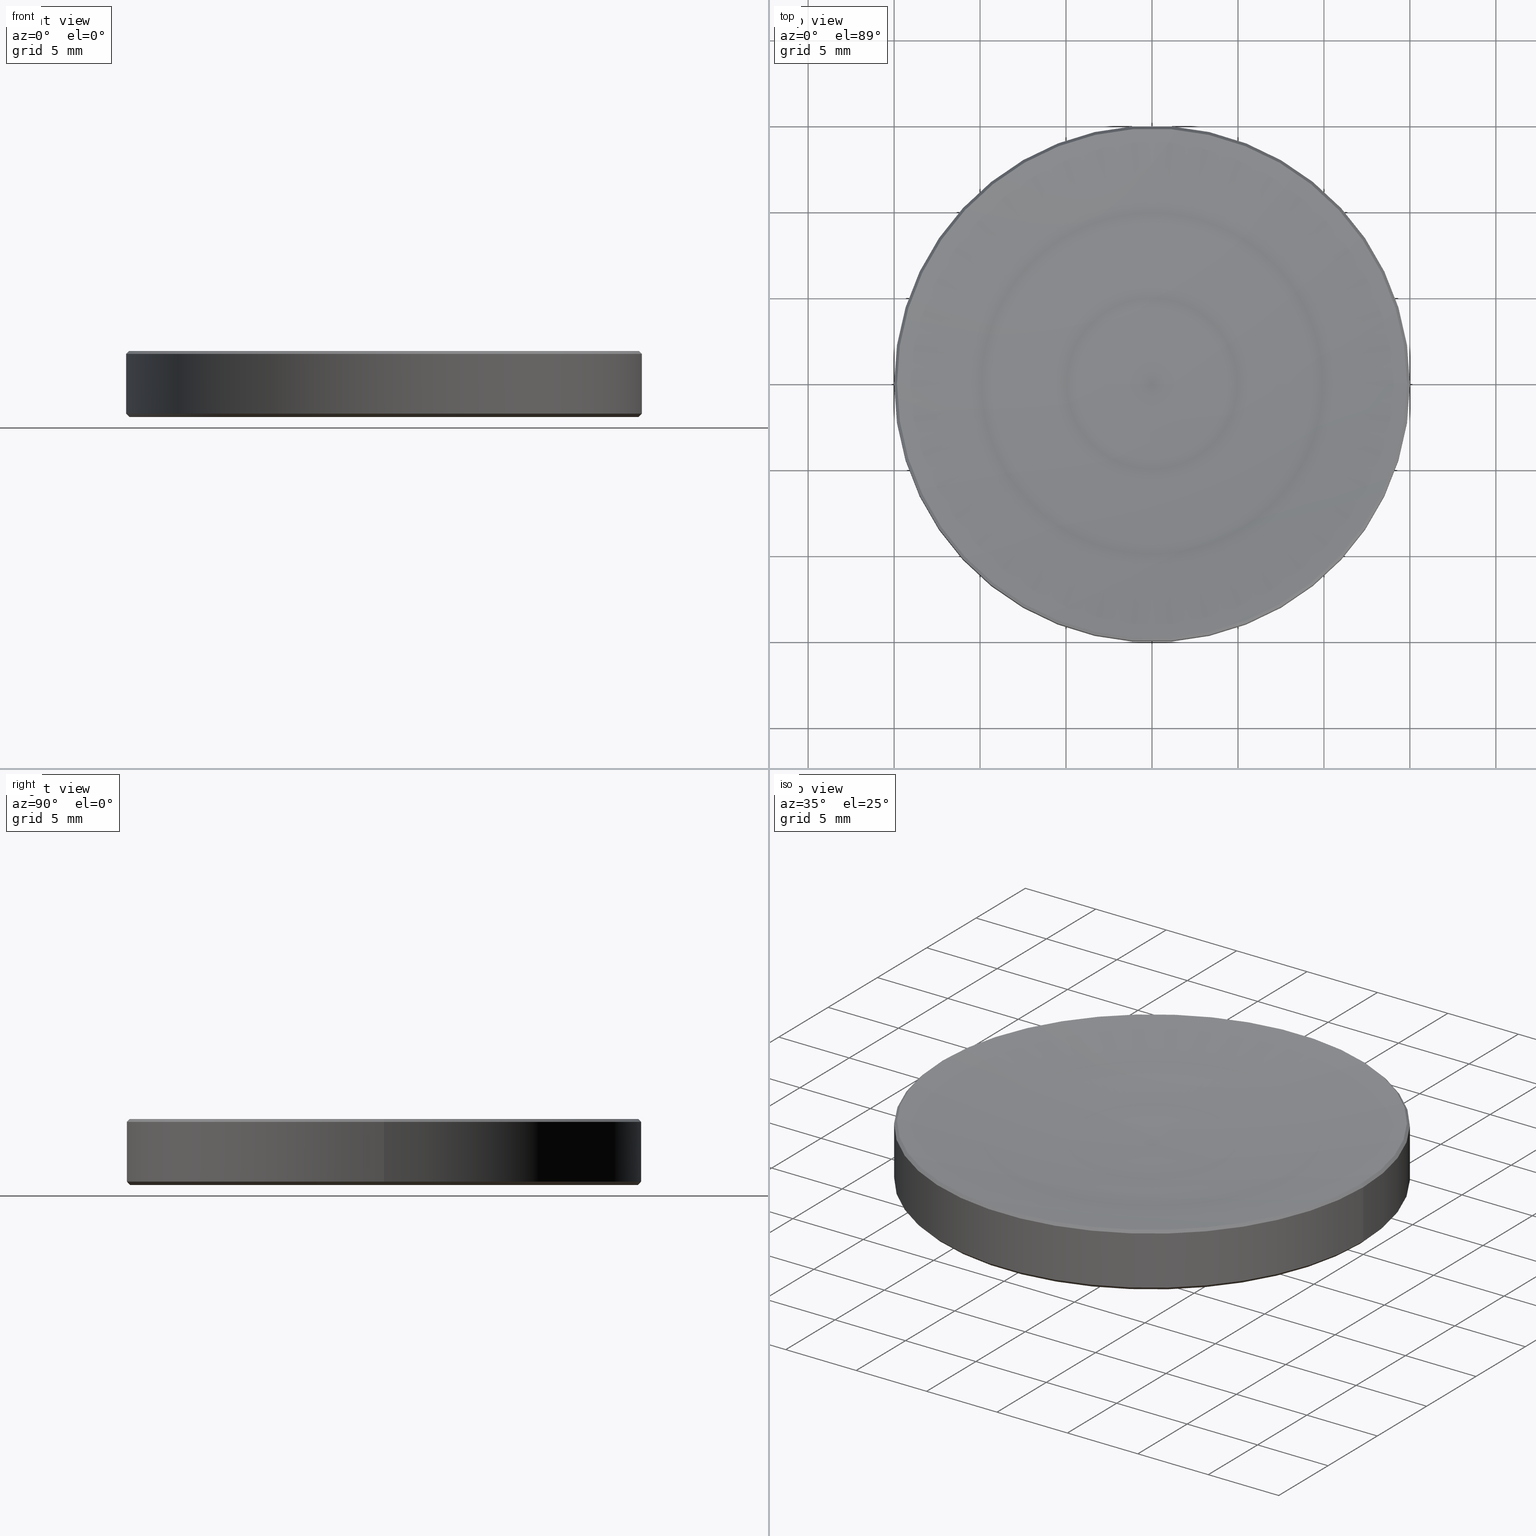
[diagram: canonical four-view strip — front | top / right | iso, engineering-drawing reading convention]
A machine part, canonical four-view strip (front | top / right | iso — engineering-drawing reading convention). The complete STEP part file that produces these views, byte-faithful:
ISO-10303-21;
HEADER;
FILE_DESCRIPTION (( 'STEP AP214' ),
    '1' );
FILE_NAME ('GL13-030-160.STEP',
    '2022-10-25T13:47:51',
    ( '' ),
    ( '' ),
    'SwSTEP 2.0',
    'SolidWorks 2022',
    '' );
FILE_SCHEMA (( 'AUTOMOTIVE_DESIGN' ));
ENDSEC;

DATA;
#1 = EDGE_CURVE ( 'NONE', #86, #47, #165, .T. ) ;
#2 = DIRECTION ( 'NONE',  ( 1.000000000000000000, 0.000000000000000000, 0.000000000000000000 ) ) ;
#3 = APPLICATION_PROTOCOL_DEFINITION ( 'draft international standard', 'automotive_design', 1998, #153 ) ;
#4 = DIRECTION ( 'NONE',  ( -0.000000000000000000, -0.000000000000000000, 1.000000000000000000 ) ) ;
#5 = CARTESIAN_POINT ( 'NONE',  ( 0.000000000000000000, 0.000000000000000000, 3.839013704481447853 ) ) ;
#6 = VECTOR ( 'NONE', #212, 999.9999999999998863 ) ;
#7 = CARTESIAN_POINT ( 'NONE',  ( 0.000000000000000000, 0.000000000000000000, 85.11999833166460405 ) ) ;
#8 = DIRECTION ( 'NONE',  ( 1.000000000000000000, 0.000000000000000000, 0.000000000000000000 ) ) ;
#9 = CARTESIAN_POINT ( 'NONE',  ( 15.00000000000000000, 0.000000000000000000, 0.2000000000000031197 ) ) ;
#10 =( LENGTH_UNIT ( ) NAMED_UNIT ( * ) SI_UNIT ( .MILLI., .METRE. ) );
#11 = CONICAL_SURFACE ( 'NONE', #227, 15.00000000000000000, 0.7853981633974528309 ) ;
#12 = CIRCLE ( 'NONE', #67, 15.00000000000000000 ) ;
#13 = DIRECTION ( 'NONE',  ( 0.000000000000000000, 0.000000000000000000, -1.000000000000000000 ) ) ;
#14 = CARTESIAN_POINT ( 'NONE',  ( 0.000000000000000000, 0.000000000000000000, 2.500000000000000000 ) ) ;
#15 = VERTEX_POINT ( 'NONE', #207 ) ;
#16 = DIRECTION ( 'NONE',  ( -0.000000000000000000, -0.000000000000000000, 1.000000000000000000 ) ) ;
#17 =( NAMED_UNIT ( * ) SI_UNIT ( $, .STERADIAN. ) SOLID_ANGLE_UNIT ( ) );
#18 = CIRCLE ( 'NONE', #94, 15.00000000000000000 ) ;
#19 = CIRCLE ( 'NONE', #31, 14.79999999999999538 ) ;
#20 = EDGE_LOOP ( 'NONE', ( #49, #140, #237 ) ) ;
#21 = VERTEX_POINT ( 'NONE', #266 ) ;
#22 = VERTEX_POINT ( 'NONE', #126 ) ;
#23 = EDGE_CURVE ( 'NONE', #90, #47, #71, .T. ) ;
#24 = DIRECTION ( 'NONE',  ( -0.000000000000000000, -0.000000000000000000, 1.000000000000000000 ) ) ;
#25 = PRESENTATION_STYLE_ASSIGNMENT (( #112 ) ) ;
#26 = ORIENTED_EDGE ( 'NONE', *, *, #102, .T. ) ;
#27 = SURFACE_STYLE_FILL_AREA ( #206 ) ;
#28 =( NAMED_UNIT ( * ) SI_UNIT ( $, .STERADIAN. ) SOLID_ANGLE_UNIT ( ) );
#29 = ADVANCED_FACE ( 'NONE', ( #147 ), #11, .T. ) ;
#30 = DIRECTION ( 'NONE',  ( 1.000000000000000000, 0.000000000000000000, 0.000000000000000000 ) ) ;
#31 = AXIS2_PLACEMENT_3D ( 'NONE', #201, #260, #38 ) ;
#32 = DIRECTION ( 'NONE',  ( 1.000000000000000000, 0.000000000000000000, 0.000000000000000000 ) ) ;
#33 = DIRECTION ( 'NONE',  ( -0.000000000000000000, -0.000000000000000000, 1.000000000000000000 ) ) ;
#34 = ADVANCED_FACE ( 'NONE', ( #65 ), #217, .T. ) ;
#35 = DIRECTION ( 'NONE',  ( -0.000000000000000000, -0.000000000000000000, 1.000000000000000000 ) ) ;
#36 = AXIS2_PLACEMENT_3D ( 'NONE', #111, #166, #2 ) ;
#37 = AXIS2_PLACEMENT_3D ( 'NONE', #113, #93, #249 ) ;
#38 = DIRECTION ( 'NONE',  ( 1.000000000000000000, 0.000000000000000000, 0.000000000000000000 ) ) ;
#39 = CARTESIAN_POINT ( 'NONE',  ( 14.79999999999999538, 0.000000000000000000, 9.184850993605147944E-16 ) ) ;
#40 = EDGE_CURVE ( 'NONE', #244, #187, #18, .T. ) ;
#41 =( NAMED_UNIT ( * ) PLANE_ANGLE_UNIT ( ) SI_UNIT ( $, .RADIAN. ) );
#42 = AXIS2_PLACEMENT_3D ( 'NONE', #229, #203, #48 ) ;
#43 = ORIENTED_EDGE ( 'NONE', *, *, #184, .T. ) ;
#44 = CONICAL_SURFACE ( 'NONE', #190, 14.83098629551858494, 0.7853981633974533860 ) ;
#45 = ORIENTED_EDGE ( 'NONE', *, *, #23, .T. ) ;
#46 = AXIS2_PLACEMENT_3D ( 'NONE', #238, #199, #120 ) ;
#47 = VERTEX_POINT ( 'NONE', #226 ) ;
#48 = DIRECTION ( 'NONE',  ( -1.000000000000000000, 0.000000000000000000, 0.000000000000000000 ) ) ;
#49 = ORIENTED_EDGE ( 'NONE', *, *, #23, .F. ) ;
#50 = CIRCLE ( 'NONE', #195, 14.79999999999999538 ) ;
#51 = CIRCLE ( 'NONE', #178, 15.00000000000000000 ) ;
#52 = DIRECTION ( 'NONE',  ( -1.000000000000000000, 0.000000000000000000, 0.000000000000000000 ) ) ;
#53 = EDGE_CURVE ( 'NONE', #86, #21, #110, .T. ) ;
#54 = TOROIDAL_SURFACE ( 'NONE', #119, 0.01660348570795434214, 82.62000000000000455 ) ;
#55 = DIRECTION ( 'NONE',  ( -0.000000000000000000, -0.000000000000000000, 1.000000000000000000 ) ) ;
#56 = ADVANCED_FACE ( 'NONE', ( #248 ), #152, .T. ) ;
#57 = CARTESIAN_POINT ( 'NONE',  ( 0.000000000000000000, 0.000000000000000000, 0.000000000000000000 ) ) ;
#58 = CIRCLE ( 'NONE', #37, 82.62000000000000455 ) ;
#59 = ORIENTED_EDGE ( 'NONE', *, *, #232, .T. ) ;
#60 = ADVANCED_FACE ( 'NONE', ( #250 ), #106, .F. ) ;
#61 = FACE_OUTER_BOUND ( 'NONE', #222, .T. ) ;
#62 = LINE ( 'NONE', #183, #218 ) ;
#63 = VECTOR ( 'NONE', #35, 1000.000000000000000 ) ;
#64 = VECTOR ( 'NONE', #160, 1000.000000000000114 ) ;
#65 = FACE_OUTER_BOUND ( 'NONE', #127, .T. ) ;
#66 = ORIENTED_EDGE ( 'NONE', *, *, #107, .T. ) ;
#67 = AXIS2_PLACEMENT_3D ( 'NONE', #136, #196, #104 ) ;
#68 = DIRECTION ( 'NONE',  ( 0.000000000000000000, 0.000000000000000000, -1.000000000000000000 ) ) ;
#69 = EDGE_LOOP ( 'NONE', ( #225, #45, #246 ) ) ;
#70 = ORIENTED_EDGE ( 'NONE', *, *, #139, .F. ) ;
#71 = CIRCLE ( 'NONE', #156, 82.62000000000000455 ) ;
#72 = APPLICATION_CONTEXT ( 'automotive_design' ) ;
#73 = CARTESIAN_POINT ( 'NONE',  ( 0.000000000000000000, 0.000000000000000000, 3.670000000000020357 ) ) ;
#74 = DIRECTION ( 'NONE',  ( -0.000000000000000000, -0.000000000000000000, 1.000000000000000000 ) ) ;
#75 = CARTESIAN_POINT ( 'NONE',  ( 0.000000000000000000, 0.000000000000000000, 9.184850993605147944E-16 ) ) ;
#76 = SHAPE_DEFINITION_REPRESENTATION ( #255, #124 ) ;
#77 = SURFACE_STYLE_USAGE ( .BOTH. , #231 ) ;
#78 = APPLICATION_PROTOCOL_DEFINITION ( 'draft international standard', 'automotive_design', 1998, #72 ) ;
#79 = CARTESIAN_POINT ( 'NONE',  ( 0.000000000000000000, 0.000000000000000000, 3.839013704481433642 ) ) ;
#80 = EDGE_CURVE ( 'NONE', #47, #86, #243, .T. ) ;
#81 = LINE ( 'NONE', #105, #64 ) ;
#82 = ORIENTED_EDGE ( 'NONE', *, *, #161, .T. ) ;
#83 =( GEOMETRIC_REPRESENTATION_CONTEXT ( 3 ) GLOBAL_UNCERTAINTY_ASSIGNED_CONTEXT ( ( #197 ) ) GLOBAL_UNIT_ASSIGNED_CONTEXT ( ( #121, #41, #17 ) ) REPRESENTATION_CONTEXT ( 'NONE', 'WORKASPACE' ) );
#84 = ORIENTED_EDGE ( 'NONE', *, *, #102, .F. ) ;
#85 = ORIENTED_EDGE ( 'NONE', *, *, #184, .F. ) ;
#86 = VERTEX_POINT ( 'NONE', #234 ) ;
#87 =( NAMED_UNIT ( * ) PLANE_ANGLE_UNIT ( ) SI_UNIT ( $, .RADIAN. ) );
#88 = EDGE_CURVE ( 'NONE', #47, #15, #157, .T. ) ;
#89 = MECHANICAL_DESIGN_GEOMETRIC_PRESENTATION_REPRESENTATION (  '', ( #252 ), #141 ) ;
#90 = VERTEX_POINT ( 'NONE', #117 ) ;
#91 = DIRECTION ( 'NONE',  ( -0.7071067811865511255, 0.000000000000000000, -0.7071067811865440200 ) ) ;
#92 = CARTESIAN_POINT ( 'NONE',  ( 0.000000000000000000, 0.000000000000000000, 0.2000000000000031197 ) ) ;
#93 = DIRECTION ( 'NONE',  ( 1.224646799147353207E-16, 1.000000000000000000, 0.000000000000000000 ) ) ;
#94 = AXIS2_PLACEMENT_3D ( 'NONE', #92, #24, #143 ) ;
#95 = AXIS2_PLACEMENT_3D ( 'NONE', #57, #158, #8 ) ;
#96 = SURFACE_STYLE_FILL_AREA ( #150 ) ;
#97 = MANIFOLD_SOLID_BREP ( '����2', #169 ) ;
#98 = FACE_OUTER_BOUND ( 'NONE', #208, .T. ) ;
#99 = DIRECTION ( 'NONE',  ( 0.7071067811865506814, 0.000000000000000000, 0.7071067811865443531 ) ) ;
#100 = FACE_OUTER_BOUND ( 'NONE', #69, .T. ) ;
#101 = DIRECTION ( 'NONE',  ( 1.000000000000000000, 0.000000000000000000, 0.000000000000000000 ) ) ;
#102 = EDGE_CURVE ( 'NONE', #187, #21, #155, .T. ) ;
#103 = PRESENTATION_LAYER_ASSIGNMENT (  '', '', ( #131 ) ) ;
#104 = DIRECTION ( 'NONE',  ( 1.000000000000000000, 0.000000000000000000, 0.000000000000000000 ) ) ;
#105 = CARTESIAN_POINT ( 'NONE',  ( -15.00000000000000000, 1.836970198721029589E-15, 0.2000000000000031197 ) ) ;
#106 = TOROIDAL_SURFACE ( 'NONE', #125, 0.01660348570795434214, 82.62000000000000455 ) ;
#107 = EDGE_CURVE ( 'NONE', #210, #244, #177, .T. ) ;
#108 = ORIENTED_EDGE ( 'NONE', *, *, #221, .T. ) ;
#109 = ORIENTED_EDGE ( 'NONE', *, *, #40, .T. ) ;
#110 = LINE ( 'NONE', #173, #209 ) ;
#111 = CARTESIAN_POINT ( 'NONE',  ( 0.000000000000000000, 0.000000000000000000, 3.839013704481447853 ) ) ;
#112 = SURFACE_STYLE_USAGE ( .BOTH. , #247 ) ;
#113 = CARTESIAN_POINT ( 'NONE',  ( -0.01660348570795434214, 2.033340562693511406E-18, 85.11999833166460405 ) ) ;
#114 = DIRECTION ( 'NONE',  ( 0.000000000000000000, 0.000000000000000000, -1.000000000000000000 ) ) ;
#115 = DIRECTION ( 'NONE',  ( 0.000000000000000000, -0.000000000000000000, 1.000000000000000000 ) ) ;
#116 = ADVANCED_FACE ( 'NONE', ( #98 ), #175, .F. ) ;
#117 = CARTESIAN_POINT ( 'NONE',  ( 0.000000000000000000, 0.000000000000000000, 2.500000000000000000 ) ) ;
#118 = DIRECTION ( 'NONE',  ( 1.000000000000000000, 0.000000000000000000, 0.000000000000000000 ) ) ;
#119 = AXIS2_PLACEMENT_3D ( 'NONE', #254, #55, #135 ) ;
#120 = DIRECTION ( 'NONE',  ( -1.000000000000000000, 0.000000000000000000, 0.000000000000000000 ) ) ;
#121 =( LENGTH_UNIT ( ) NAMED_UNIT ( * ) SI_UNIT ( .MILLI., .METRE. ) );
#122 = PRODUCT_DEFINITION_CONTEXT ( 'detailed design', #72, 'design' ) ;
#123 = DIRECTION ( 'NONE',  ( 0.000000000000000000, -1.000000000000000000, 0.000000000000000000 ) ) ;
#124 = ADVANCED_BREP_SHAPE_REPRESENTATION ( 'GL13-030-160', ( #97, #95 ), #83 ) ;
#125 = AXIS2_PLACEMENT_3D ( 'NONE', #7, #74, #32 ) ;
#126 = CARTESIAN_POINT ( 'NONE',  ( -14.79999999999999538, 1.824723730729555837E-15, 9.184850993605147944E-16 ) ) ;
#127 = EDGE_LOOP ( 'NONE', ( #185, #242, #228, #205 ) ) ;
#128 = ORIENTED_EDGE ( 'NONE', *, *, #107, .F. ) ;
#129 = VECTOR ( 'NONE', #99, 1000.000000000000114 ) ;
#130 = ORIENTED_EDGE ( 'NONE', *, *, #53, .F. ) ;
#131 = STYLED_ITEM ( 'NONE', ( #25 ), #124 ) ;
#132 = CARTESIAN_POINT ( 'NONE',  ( 0.000000000000000000, 0.000000000000000000, 2.500000000000000000 ) ) ;
#133 =( NAMED_UNIT ( * ) PLANE_ANGLE_UNIT ( ) SI_UNIT ( $, .RADIAN. ) );
#134 = PRESENTATION_LAYER_ASSIGNMENT (  '', '', ( #252 ) ) ;
#135 = DIRECTION ( 'NONE',  ( 1.000000000000000000, 0.000000000000000000, 0.000000000000000000 ) ) ;
#136 = CARTESIAN_POINT ( 'NONE',  ( 0.000000000000000000, 0.000000000000000000, 0.2000000000000031197 ) ) ;
#137 = MECHANICAL_DESIGN_GEOMETRIC_PRESENTATION_REPRESENTATION (  '', ( #131 ), #204 ) ;
#138 = DIRECTION ( 'NONE',  ( -0.000000000000000000, -0.000000000000000000, 1.000000000000000000 ) ) ;
#139 = EDGE_CURVE ( 'NONE', #210, #22, #50, .T. ) ;
#140 = ORIENTED_EDGE ( 'NONE', *, *, #151, .T. ) ;
#141 =( GEOMETRIC_REPRESENTATION_CONTEXT ( 3 ) GLOBAL_UNCERTAINTY_ASSIGNED_CONTEXT ( ( #202 ) ) GLOBAL_UNIT_ASSIGNED_CONTEXT ( ( #10, #133, #28 ) ) REPRESENTATION_CONTEXT ( 'NONE', 'WORKASPACE' ) );
#142 = ADVANCED_FACE ( 'NONE', ( #100 ), #54, .F. ) ;
#143 = DIRECTION ( 'NONE',  ( 1.000000000000000000, 0.000000000000000000, 0.000000000000000000 ) ) ;
#144 = AXIS2_PLACEMENT_3D ( 'NONE', #5, #33, #30 ) ;
#145 = ORIENTED_EDGE ( 'NONE', *, *, #221, .F. ) ;
#146 = ADVANCED_FACE ( 'NONE', ( #216 ), #44, .T. ) ;
#147 = FACE_OUTER_BOUND ( 'NONE', #261, .T. ) ;
#148 = EDGE_LOOP ( 'NONE', ( #84, #108, #59, #82 ) ) ;
#149 = ORIENTED_EDGE ( 'NONE', *, *, #200, .T. ) ;
#150 = FILL_AREA_STYLE ('',( #179 ) ) ;
#151 = EDGE_CURVE ( 'NONE', #90, #86, #58, .T. ) ;
#152 = CYLINDRICAL_SURFACE ( 'NONE', #239, 15.00000000000000000 ) ;
#153 = APPLICATION_CONTEXT ( 'automotive_design' ) ;
#154 = PRODUCT_CONTEXT ( 'NONE', #153, 'mechanical' ) ;
#155 = LINE ( 'NONE', #215, #63 ) ;
#156 = AXIS2_PLACEMENT_3D ( 'NONE', #171, #123, #68 ) ;
#157 = LINE ( 'NONE', #253, #6 ) ;
#158 = DIRECTION ( 'NONE',  ( 0.000000000000000000, 0.000000000000000000, 1.000000000000000000 ) ) ;
#159 = CYLINDRICAL_SURFACE ( 'NONE', #224, 15.00000000000000000 ) ;
#160 = DIRECTION ( 'NONE',  ( -0.7071067811865506814, 8.659560562354969836E-17, 0.7071067811865443531 ) ) ;
#161 = EDGE_CURVE ( 'NONE', #15, #21, #51, .T. ) ;
#162 = ORIENTED_EDGE ( 'NONE', *, *, #219, .F. ) ;
#163 = CARTESIAN_POINT ( 'NONE',  ( -15.00000000000000000, 1.836970198721029589E-15, 0.2000000000000031197 ) ) ;
#164 = ORIENTED_EDGE ( 'NONE', *, *, #200, .F. ) ;
#165 = CIRCLE ( 'NONE', #36, 14.83098629551858849 ) ;
#166 = DIRECTION ( 'NONE',  ( -0.000000000000000000, -0.000000000000000000, 1.000000000000000000 ) ) ;
#167 = ORIENTED_EDGE ( 'NONE', *, *, #219, .T. ) ;
#168 =( NAMED_UNIT ( * ) SI_UNIT ( $, .STERADIAN. ) SOLID_ANGLE_UNIT ( ) );
#169 = CLOSED_SHELL ( 'NONE', ( #146, #29, #56, #60, #142, #241, #116, #245, #34 ) ) ;
#170 = PRODUCT_DEFINITION_FORMATION_WITH_SPECIFIED_SOURCE ( '�κ�', '', #198, .NOT_KNOWN. ) ;
#171 = CARTESIAN_POINT ( 'NONE',  ( 0.01660348570795434214, 0.000000000000000000, 85.11999833166460405 ) ) ;
#172 = ORIENTED_EDGE ( 'NONE', *, *, #80, .F. ) ;
#173 = CARTESIAN_POINT ( 'NONE',  ( -14.83098629551858494, 0.000000000000000000, 3.839013704481433642 ) ) ;
#174 = DIRECTION ( 'NONE',  ( -0.000000000000000000, -0.000000000000000000, 1.000000000000000000 ) ) ;
#175 = PLANE ( 'NONE',  #262 ) ;
#176 = PRODUCT_DEFINITION ( 'δ֪', '', #170, #122 ) ;
#177 = LINE ( 'NONE', #9, #129 ) ;
#178 = AXIS2_PLACEMENT_3D ( 'NONE', #73, #114, #192 ) ;
#179 = FILL_AREA_STYLE_COLOUR ( '', #223 ) ;
#180 = CARTESIAN_POINT ( 'NONE',  ( 15.00000000000000000, 0.000000000000000000, 0.2000000000000031197 ) ) ;
#181 = ORIENTED_EDGE ( 'NONE', *, *, #40, .F. ) ;
#182 = UNCERTAINTY_MEASURE_WITH_UNIT (LENGTH_MEASURE( 1.000000000000000082E-05 ), #265, 'distance_accuracy_value', 'NONE');
#183 = CARTESIAN_POINT ( 'NONE',  ( 15.00000000000000000, 0.000000000000000000, 2.500000000000000000 ) ) ;
#184 = EDGE_CURVE ( 'NONE', #22, #187, #81, .T. ) ;
#185 = ORIENTED_EDGE ( 'NONE', *, *, #88, .F. ) ;
#186 = ORIENTED_EDGE ( 'NONE', *, *, #88, .T. ) ;
#187 = VERTEX_POINT ( 'NONE', #163 ) ;
#188 = PRODUCT_RELATED_PRODUCT_CATEGORY ( 'part', '', ( #198 ) ) ;
#189 = CARTESIAN_POINT ( 'NONE',  ( 0.000000000000000000, 0.000000000000000000, 0.2000000000000031197 ) ) ;
#190 = AXIS2_PLACEMENT_3D ( 'NONE', #79, #213, #52 ) ;
#191 = CONICAL_SURFACE ( 'NONE', #258, 15.00000000000000000, 0.7853981633974528309 ) ;
#192 = DIRECTION ( 'NONE',  ( -1.000000000000000000, 0.000000000000000000, 0.000000000000000000 ) ) ;
#193 = PRESENTATION_STYLE_ASSIGNMENT (( #77 ) ) ;
#194 = DIRECTION ( 'NONE',  ( 1.000000000000000000, 0.000000000000000000, 0.000000000000000000 ) ) ;
#195 = AXIS2_PLACEMENT_3D ( 'NONE', #75, #13, #233 ) ;
#196 = DIRECTION ( 'NONE',  ( -0.000000000000000000, -0.000000000000000000, 1.000000000000000000 ) ) ;
#197 = UNCERTAINTY_MEASURE_WITH_UNIT (LENGTH_MEASURE( 1.000000000000000082E-05 ), #121, 'distance_accuracy_value', 'NONE');
#198 = PRODUCT ( 'GL13-030-160', 'GL13-030-160', '', ( #154 ) ) ;
#199 = DIRECTION ( 'NONE',  ( 0.000000000000000000, 0.000000000000000000, -1.000000000000000000 ) ) ;
#200 = EDGE_CURVE ( 'NONE', #21, #15, #235, .T. ) ;
#201 = CARTESIAN_POINT ( 'NONE',  ( 0.000000000000000000, 0.000000000000000000, 9.184850993605147944E-16 ) ) ;
#202 = UNCERTAINTY_MEASURE_WITH_UNIT (LENGTH_MEASURE( 1.000000000000000082E-05 ), #10, 'distance_accuracy_value', 'NONE');
#203 = DIRECTION ( 'NONE',  ( 0.000000000000000000, 0.000000000000000000, -1.000000000000000000 ) ) ;
#204 =( GEOMETRIC_REPRESENTATION_CONTEXT ( 3 ) GLOBAL_UNCERTAINTY_ASSIGNED_CONTEXT ( ( #182 ) ) GLOBAL_UNIT_ASSIGNED_CONTEXT ( ( #265, #87, #168 ) ) REPRESENTATION_CONTEXT ( 'NONE', 'WORKASPACE' ) );
#205 = ORIENTED_EDGE ( 'NONE', *, *, #161, .F. ) ;
#206 = FILL_AREA_STYLE ('',( #211 ) ) ;
#207 = CARTESIAN_POINT ( 'NONE',  ( 15.00000000000000000, 0.000000000000000000, 3.670000000000020357 ) ) ;
#208 = EDGE_LOOP ( 'NONE', ( #230, #167 ) ) ;
#209 = VECTOR ( 'NONE', #91, 999.9999999999998863 ) ;
#210 = VERTEX_POINT ( 'NONE', #39 ) ;
#211 = FILL_AREA_STYLE_COLOUR ( '', #214 ) ;
#212 = DIRECTION ( 'NONE',  ( 0.7071067811865511255, 8.659560562354978464E-17, -0.7071067811865440200 ) ) ;
#213 = DIRECTION ( 'NONE',  ( 0.000000000000000000, 0.000000000000000000, -1.000000000000000000 ) ) ;
#214 = COLOUR_RGB ( '',1.000000000000000000, 1.000000000000000000, 1.000000000000000000 ) ;
#215 = CARTESIAN_POINT ( 'NONE',  ( -15.00000000000000000, 1.836970198721029589E-15, 2.500000000000000000 ) ) ;
#216 = FACE_OUTER_BOUND ( 'NONE', #263, .T. ) ;
#217 = CONICAL_SURFACE ( 'NONE', #42, 14.83098629551858494, 0.7853981633974533860 ) ;
#218 = VECTOR ( 'NONE', #16, 1000.000000000000000 ) ;
#219 = EDGE_CURVE ( 'NONE', #22, #210, #19, .T. ) ;
#220 = CARTESIAN_POINT ( 'NONE',  ( 0.000000000000000000, 0.000000000000000000, 0.2000000000000031197 ) ) ;
#221 = EDGE_CURVE ( 'NONE', #187, #244, #12, .T. ) ;
#222 = EDGE_LOOP ( 'NONE', ( #85, #70, #66, #145 ) ) ;
#223 = COLOUR_RGB ( '',1.000000000000000000, 1.000000000000000000, 1.000000000000000000 ) ;
#224 = AXIS2_PLACEMENT_3D ( 'NONE', #14, #138, #101 ) ;
#225 = ORIENTED_EDGE ( 'NONE', *, *, #151, .F. ) ;
#226 = CARTESIAN_POINT ( 'NONE',  ( 14.83098629551863468, 0.000000000000000000, 3.839013704481447853 ) ) ;
#227 = AXIS2_PLACEMENT_3D ( 'NONE', #189, #4, #240 ) ;
#228 = ORIENTED_EDGE ( 'NONE', *, *, #53, .T. ) ;
#229 = CARTESIAN_POINT ( 'NONE',  ( 0.000000000000000000, 0.000000000000000000, 3.839013704481433642 ) ) ;
#230 = ORIENTED_EDGE ( 'NONE', *, *, #139, .T. ) ;
#231 = SURFACE_SIDE_STYLE ('',( #96 ) ) ;
#232 = EDGE_CURVE ( 'NONE', #244, #15, #62, .T. ) ;
#233 = DIRECTION ( 'NONE',  ( 1.000000000000000000, 0.000000000000000000, 0.000000000000000000 ) ) ;
#234 = CARTESIAN_POINT ( 'NONE',  ( -14.83098629551863468, 1.816271989500516018E-15, 3.839013704481447853 ) ) ;
#235 = CIRCLE ( 'NONE', #46, 15.00000000000000000 ) ;
#236 = FACE_OUTER_BOUND ( 'NONE', #148, .T. ) ;
#237 = ORIENTED_EDGE ( 'NONE', *, *, #1, .T. ) ;
#238 = CARTESIAN_POINT ( 'NONE',  ( 0.000000000000000000, 0.000000000000000000, 3.670000000000020357 ) ) ;
#239 = AXIS2_PLACEMENT_3D ( 'NONE', #132, #174, #194 ) ;
#240 = DIRECTION ( 'NONE',  ( 1.000000000000000000, 0.000000000000000000, 0.000000000000000000 ) ) ;
#241 = ADVANCED_FACE ( 'NONE', ( #236 ), #159, .T. ) ;
#242 = ORIENTED_EDGE ( 'NONE', *, *, #1, .F. ) ;
#243 = CIRCLE ( 'NONE', #144, 14.83098629551858849 ) ;
#244 = VERTEX_POINT ( 'NONE', #180 ) ;
#245 = ADVANCED_FACE ( 'NONE', ( #61 ), #191, .T. ) ;
#246 = ORIENTED_EDGE ( 'NONE', *, *, #80, .T. ) ;
#247 = SURFACE_SIDE_STYLE ('',( #27 ) ) ;
#248 = FACE_OUTER_BOUND ( 'NONE', #264, .T. ) ;
#249 = DIRECTION ( 'NONE',  ( -1.000000000000000000, 1.224646799147353207E-16, 0.000000000000000000 ) ) ;
#250 = FACE_OUTER_BOUND ( 'NONE', #20, .T. ) ;
#251 = CARTESIAN_POINT ( 'NONE',  ( 0.000000000000000000, 0.000000000000000000, 9.184850993605147944E-16 ) ) ;
#252 = STYLED_ITEM ( 'NONE', ( #193 ), #97 ) ;
#253 = CARTESIAN_POINT ( 'NONE',  ( 14.83098629551858494, 1.816271989500509707E-15, 3.839013704481433642 ) ) ;
#254 = CARTESIAN_POINT ( 'NONE',  ( 0.000000000000000000, 0.000000000000000000, 85.11999833166460405 ) ) ;
#255 = PRODUCT_DEFINITION_SHAPE ( 'NONE', 'NONE',  #176 ) ;
#256 = DIRECTION ( 'NONE',  ( 1.000000000000000000, 0.000000000000000000, 0.000000000000000000 ) ) ;
#257 = ORIENTED_EDGE ( 'NONE', *, *, #232, .F. ) ;
#258 = AXIS2_PLACEMENT_3D ( 'NONE', #220, #259, #256 ) ;
#259 = DIRECTION ( 'NONE',  ( -0.000000000000000000, -0.000000000000000000, 1.000000000000000000 ) ) ;
#260 = DIRECTION ( 'NONE',  ( 0.000000000000000000, 0.000000000000000000, -1.000000000000000000 ) ) ;
#261 = EDGE_LOOP ( 'NONE', ( #162, #43, #181, #128 ) ) ;
#262 = AXIS2_PLACEMENT_3D ( 'NONE', #251, #115, #118 ) ;
#263 = EDGE_LOOP ( 'NONE', ( #172, #186, #164, #130 ) ) ;
#264 = EDGE_LOOP ( 'NONE', ( #109, #26, #149, #257 ) ) ;
#265 =( LENGTH_UNIT ( ) NAMED_UNIT ( * ) SI_UNIT ( .MILLI., .METRE. ) );
#266 = CARTESIAN_POINT ( 'NONE',  ( -15.00000000000000000, 1.836970198721029589E-15, 3.670000000000020357 ) ) ;
ENDSEC;
END-ISO-10303-21;
